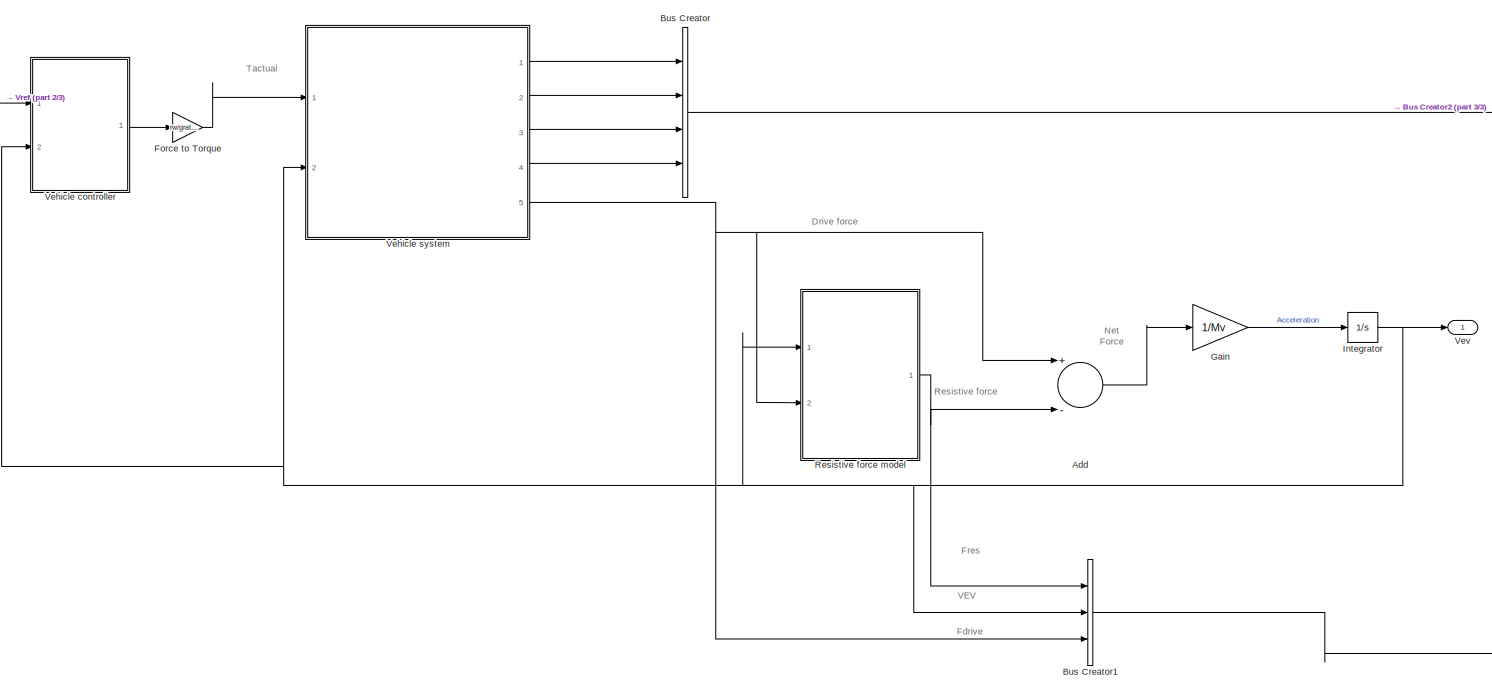
[diagram: root canvas - part 1/3, center side, full height]
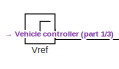
[diagram: root canvas - part 2/3, top left region]
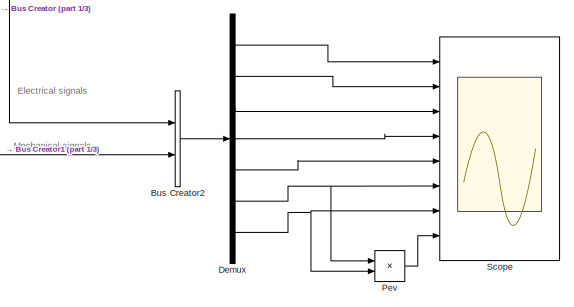
[diagram: root canvas - part 3/3, bottom right region]
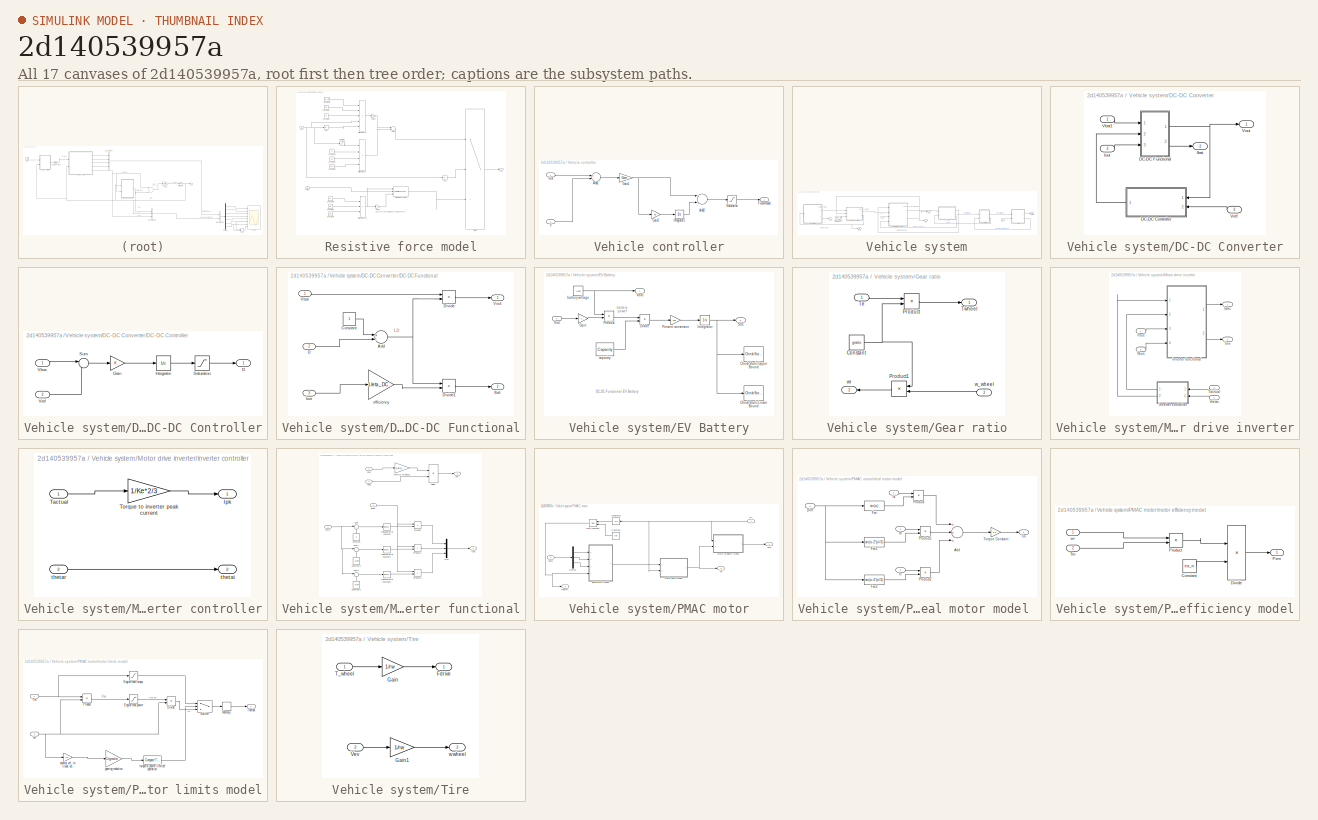
[diagram: thumbnail index - all 17 canvases of the model, root first then tree order]
MODEL slx_2d140539957a
KIND model
CONFIG AbsTol = auto
CONFIG FixedStep = auto
CONFIG MaxStep = auto
CONFIG MinStep = auto
CONFIG RelTol = 1e-3
CONFIG SampleTimeConstraint = Unconstrained
CONFIG Solver = VariableStepAuto
CONFIG SolverMode = Auto
CONFIG SolverName = VariableStepAuto
CONFIG StartTime = 0.0
CONFIG StopTime = tstop
BLOCK [Outport]  Vev
  IconDisplay = Port number
BLOCK [Sum] Add
  InputSameDT = off
  Inputs = +-
  OutDataTypeStr = Inherit: Inherit via internal rule
  Ports = [2, 1]
  SaturateOnIntegerOverflow = off
BLOCK [BusCreator] Bus Creator
  DisplayOption = bar
  InheritFromInputs = on
  Inputs = 4
  Ports = [4, 1]
BLOCK [BusCreator] Bus Creator1
  DisplayOption = bar
  InheritFromInputs = on
  Inputs = 3
  Ports = [3, 1]
BLOCK [BusCreator] Bus Creator2
  DisplayOption = bar
  InheritFromInputs = on
  Inputs = 2
  Ports = [2, 1]
BLOCK [Demux] Demux
  DisplayOption = bar
  Outputs = 7
  Ports = [1, 7]
BLOCK [Gain] Force to Torque
  Gain = rw/gratio
  OutDataTypeStr = Inherit: Inherit via internal rule
  ParamDataTypeStr = Inherit: Inherit via internal rule
  SaturateOnIntegerOverflow = off
BLOCK [Gain] Gain
  Gain = 1/Mv
  OutDataTypeStr = Inherit: Inherit via internal rule
  ParamDataTypeStr = Inherit: Inherit via internal rule
  SaturateOnIntegerOverflow = off
BLOCK [Integrator] Integrator
  Ports = [1, 1]
BLOCK [Product] Pev
  InputSameDT = off
  OutDataTypeStr = Inherit: Inherit via internal rule
  Ports = [2, 1]
  RndMeth = Floor
  SaturateOnIntegerOverflow = off
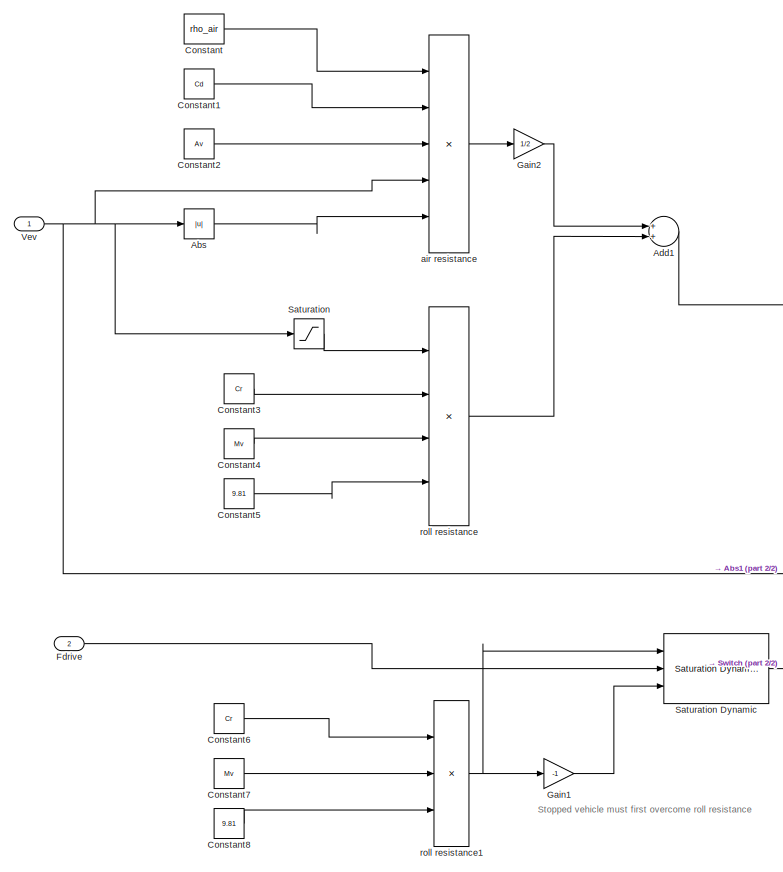
[diagram: Resistive force model - part 1/2, left side, full height]
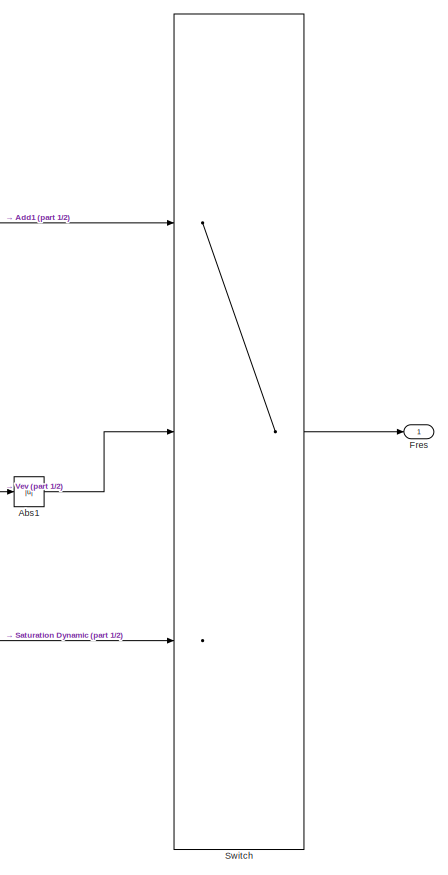
[diagram: Resistive force model - part 2/2, right side, full height]
BLOCK [SubSystem] Resistive force model
  Ports = [2, 1]
  RequestExecContextInheritance = off
  Variant = off
BLOCK [Abs] Resistive force model/Abs
  SaturateOnIntegerOverflow = off
  ZeroCross = off
BLOCK [Abs] Resistive force model/Abs1
  SaturateOnIntegerOverflow = off
BLOCK [Sum] Resistive force model/Add1
  InputSameDT = off
  OutDataTypeStr = Inherit: Inherit via internal rule
  Ports = [2, 1]
  SaturateOnIntegerOverflow = off
BLOCK [Constant] Resistive force model/Constant
  Value = rho_air
BLOCK [Constant] Resistive force model/Constant1
  Value = Cd
BLOCK [Constant] Resistive force model/Constant2
  Value = Av
BLOCK [Constant] Resistive force model/Constant3
  Value = Cr
BLOCK [Constant] Resistive force model/Constant4
  Value = Mv
BLOCK [Constant] Resistive force model/Constant5
  Value = 9.81
BLOCK [Constant] Resistive force model/Constant6
  Value = Cr
BLOCK [Constant] Resistive force model/Constant7
  Value = Mv
BLOCK [Constant] Resistive force model/Constant8
  Value = 9.81
BLOCK [Inport] Resistive force model/Fdrive 
  IconDisplay = Port number
  Port = 2
BLOCK [Outport] Resistive force model/Fres
  IconDisplay = Port number
BLOCK [Gain] Resistive force model/Gain1
  Gain = -1
  OutDataTypeStr = Inherit: Inherit via internal rule
  ParamDataTypeStr = Inherit: Inherit via internal rule
  SaturateOnIntegerOverflow = off
BLOCK [Gain] Resistive force model/Gain2
  Gain = 1/2
  OutDataTypeStr = Inherit: Inherit via internal rule
  ParamDataTypeStr = Inherit: Inherit via internal rule
  SaturateOnIntegerOverflow = off
BLOCK [Saturate] Resistive force model/Saturation
  InputPortMap = u0
  LowerLimit = -1
  Ports = [1, 1]
  UpperLimit = 1
BLOCK [Reference] Resistive force model/Saturation Dynamic  REF=simulink/Discontinuities/Saturation
Dynamic
  Ports = [3, 1]
  SourceBlock = simulink/Discontinuities/Saturation\nDynamic
  SourceType = Saturation Dynamic
BLOCK [Switch] Resistive force model/Switch
  InputSameDT = off
  SaturateOnIntegerOverflow = off
  ZeroCross = off
BLOCK [Inport] Resistive force model/Vev 
  IconDisplay = Port number
BLOCK [Product] Resistive force model/air resistance 
  InputSameDT = off
  Inputs = 5
  OutDataTypeStr = Inherit: Inherit via internal rule
  Ports = [5, 1]
  RndMeth = Floor
  SaturateOnIntegerOverflow = off
BLOCK [Product] Resistive force model/roll resistance
  InputSameDT = off
  Inputs = 4
  OutDataTypeStr = Inherit: Inherit via internal rule
  Ports = [4, 1]
  RndMeth = Floor
  SaturateOnIntegerOverflow = off
BLOCK [Product] Resistive force model/roll resistance1
  InputSameDT = off
  Inputs = 3
  OutDataTypeStr = Inherit: Inherit via internal rule
  Ports = [3, 1]
  RndMeth = Floor
  SaturateOnIntegerOverflow = off
BLOCK [Scope] Scope
  NumInputPorts = 8
  Ports = [8]
  ScopeSpecificationString = Simulink.scopes.TimeScopeBlockCfg('CurrentConfiguration', extmgr.ConfigurationSet(extmgr.Configuration('Core','General UI',true),extmgr.Configuration('Core','Source UI',true),extmgr.Configuration('Sources','WiredSimulink',true),extmgr.Configuration('Visuals','Time Domain',true,'SerializedDisplays',{struct('MinYLimReal','-681.67881','MaxYLimReal','4970.3034','YLabelReal','','MinYLimMag',' 0.00000',...<+6155ch>
BLOCK [SubSystem] Vehicle controller
  Ports = [2, 1]
  RequestExecContextInheritance = off
  Variant = off
BLOCK [Sum] Vehicle controller/Add1
  InputSameDT = off
  Inputs = +-
  OutDataTypeStr = Inherit: Inherit via internal rule
  Ports = [2, 1]
  SaturateOnIntegerOverflow = off
BLOCK [Sum] Vehicle controller/Add2
  InputSameDT = off
  OutDataTypeStr = Inherit: Inherit via internal rule
  Ports = [2, 1]
  SaturateOnIntegerOverflow = off
BLOCK [Outport] Vehicle controller/Fvcommand
  IconDisplay = Port number
BLOCK [Gain] Vehicle controller/Gain1
  Gain = Gcm
  OutDataTypeStr = Inherit: Inherit via internal rule
  ParamDataTypeStr = Inherit: Inherit via internal rule
  SaturateOnIntegerOverflow = off
BLOCK [Gain] Vehicle controller/Gain2
  Gain = wz
  OutDataTypeStr = Inherit: Inherit via internal rule
  ParamDataTypeStr = Inherit: Inherit via internal rule
  SaturateOnIntegerOverflow = off
BLOCK [Integrator] Vehicle controller/Integrator1
  Ports = [1, 1]
BLOCK [Saturate] Vehicle controller/Saturation
  InputPortMap = u0
  LowerLimit = -Fv_max
  Ports = [1, 1]
  UpperLimit = Fv_max
BLOCK [Inport] Vehicle controller/V
  IconDisplay = Port number
  Port = 2
BLOCK [Inport] Vehicle controller/Vref
  IconDisplay = Port number
BLOCK [SubSystem] Vehicle system
  Ports = [2, 5]
  RequestExecContextInheritance = off
  Variant = off
BLOCK [Inport] Vehicle system/ 
  IconDisplay = Port number
BLOCK [Constant] Vehicle system/Bus voltage reference
  Value = Vbus_ref
BLOCK [SubSystem] Vehicle system/DC-DC Converter
  Ports = [3, 2]
  RequestExecContextInheritance = off
  Variant = off
BLOCK [SubSystem] Vehicle system/DC-DC Converter/DC-DC Controller
  Ports = [2, 1]
  RequestExecContextInheritance = off
  Variant = off
BLOCK [Outport] Vehicle system/DC-DC Converter/DC-DC Controller/D 
  IconDisplay = Port number
BLOCK [Gain] Vehicle system/DC-DC Converter/DC-DC Controller/Gain
  OutDataTypeStr = Inherit: Inherit via internal rule
  ParamDataTypeStr = Inherit: Inherit via internal rule
  SaturateOnIntegerOverflow = off
BLOCK [Integrator] Vehicle system/DC-DC Converter/DC-DC Controller/Integrator
  Ports = [1, 1]
BLOCK [Saturate] Vehicle system/DC-DC Converter/DC-DC Controller/Saturation
  InputPortMap = u0
  LowerLimit = 0
  Ports = [1, 1]
  UpperLimit = 1
BLOCK [Sum] Vehicle system/DC-DC Converter/DC-DC Controller/Sum
  IconShape = round
  InputSameDT = off
  Inputs = |-+
  OutDataTypeStr = Inherit: Inherit via internal rule
  Ports = [2, 1]
  SaturateOnIntegerOverflow = off
BLOCK [Inport] Vehicle system/DC-DC Converter/DC-DC Controller/Vbus
  IconDisplay = Port number
BLOCK [Inport] Vehicle system/DC-DC Converter/DC-DC Controller/Vref
  IconDisplay = Port number
  Port = 2
BLOCK [SubSystem] Vehicle system/DC-DC Converter/DC-DC Functional
  Ports = [3, 2]
  RequestExecContextInheritance = off
  Variant = off
BLOCK [Sum] Vehicle system/DC-DC Converter/DC-DC Functional/Add
  InputSameDT = off
  Inputs = +-
  OutDataTypeStr = Inherit: Inherit via internal rule
  Ports = [2, 1]
  SaturateOnIntegerOverflow = off
BLOCK [Constant] Vehicle system/DC-DC Converter/DC-DC Functional/Constant
BLOCK [Inport] Vehicle system/DC-DC Converter/DC-DC Functional/D
  IconDisplay = Port number
  Port = 2
BLOCK [Product] Vehicle system/DC-DC Converter/DC-DC Functional/Divide
  InputSameDT = off
  Inputs = */
  OutDataTypeStr = Inherit: Inherit via internal rule
  Ports = [2, 1]
  RndMeth = Floor
  SaturateOnIntegerOverflow = off
BLOCK [Product] Vehicle system/DC-DC Converter/DC-DC Functional/Divide1
  InputSameDT = off
  Inputs = /*
  OutDataTypeStr = Inherit: Inherit via internal rule
  Ports = [2, 1]
  RndMeth = Floor
  SaturateOnIntegerOverflow = off
BLOCK [Outport] Vehicle system/DC-DC Converter/DC-DC Functional/Ibat
  IconDisplay = Port number
  Port = 2
BLOCK [Inport] Vehicle system/DC-DC Converter/DC-DC Functional/Iout
  IconDisplay = Port number
  Port = 3
BLOCK [Inport] Vehicle system/DC-DC Converter/DC-DC Functional/Vbat
  IconDisplay = Port number
BLOCK [Outport] Vehicle system/DC-DC Converter/DC-DC Functional/Vout
  IconDisplay = Port number
BLOCK [Gain] Vehicle system/DC-DC Converter/DC-DC Functional/efficiency
  Gain = 1/eta_DC
  OutDataTypeStr = Inherit: Inherit via internal rule
  ParamDataTypeStr = Inherit: Inherit via internal rule
  SaturateOnIntegerOverflow = off
BLOCK [Outport] Vehicle system/DC-DC Converter/Ibat
  IconDisplay = Port number
  Port = 2
BLOCK [Inport] Vehicle system/DC-DC Converter/Iout
  IconDisplay = Port number
  Port = 2
BLOCK [Inport] Vehicle system/DC-DC Converter/Vbat1
  IconDisplay = Port number
BLOCK [Outport] Vehicle system/DC-DC Converter/Vout
  IconDisplay = Port number
BLOCK [Inport] Vehicle system/DC-DC Converter/Vref
  IconDisplay = Port number
  Port = 3
BLOCK [SubSystem] Vehicle system/EV Battery
  Ports = [1, 2]
  RequestExecContextInheritance = off
  Variant = off
BLOCK [Reference] Vehicle system/EV Battery/Check Static Lower Bound  REF=simulink/Model
Verification/Check Static 
Lower Bound
  Description = 0-eps <= u
  Ports = [1]
  SourceBlock = simulink/Model\nVerification/Check Static \nLower Bound
  SourceType = Checks_SMin
BLOCK [Reference] Vehicle system/EV Battery/Check Static Upper Bound  REF=simulink/Model
Verification/Check Static 
Upper Bound
  Description = u <= 100+eps
  Ports = [1]
  SourceBlock = simulink/Model\nVerification/Check Static \nUpper Bound
  SourceType = Checks_SMax
BLOCK [Product] Vehicle system/EV Battery/Divide
  InputSameDT = off
  Inputs = */
  OutDataTypeStr = Inherit: Inherit via internal rule
  Ports = [2, 1]
  RndMeth = Floor
  SaturateOnIntegerOverflow = off
BLOCK [Gain] Vehicle system/EV Battery/Gain
  Gain = -1
  OutDataTypeStr = Inherit: Inherit via internal rule
  ParamDataTypeStr = Inherit: Inherit via internal rule
  SaturateOnIntegerOverflow = off
BLOCK [Inport] Vehicle system/EV Battery/Ibat 
  IconDisplay = Port number
BLOCK [Integrator] Vehicle system/EV Battery/Integrator
  InitialCondition = SOC_0
  Ports = [1, 1]
BLOCK [Gain] Vehicle system/EV Battery/Percent conversion
  Gain = 100
  OutDataTypeStr = Inherit: Inherit via internal rule
  ParamDataTypeStr = Inherit: Inherit via internal rule
  SaturateOnIntegerOverflow = off
BLOCK [Product] Vehicle system/EV Battery/Product
  InputSameDT = off
  OutDataTypeStr = Inherit: Inherit via internal rule
  Ports = [2, 1]
  RndMeth = Floor
  SaturateOnIntegerOverflow = off
BLOCK [Outport] Vehicle system/EV Battery/SOC
  IconDisplay = Port number
  Port = 2
BLOCK [Outport] Vehicle system/EV Battery/Vbat
  IconDisplay = Port number
BLOCK [Constant] Vehicle system/EV Battery/battery voltage
  Value = Vbat
BLOCK [Constant] Vehicle system/EV Battery/capacity
  Value = Capacity
BLOCK [Outport] Vehicle system/Fdrive
  IconDisplay = Port number
  Port = 5
BLOCK [SubSystem] Vehicle system/Gear ratio
  Ports = [2, 2]
  RequestExecContextInheritance = off
  Variant = off
BLOCK [Constant] Vehicle system/Gear ratio/Constant
  Value = gratio
BLOCK [Product] Vehicle system/Gear ratio/Product
  InputSameDT = off
  OutDataTypeStr = Inherit: Inherit via internal rule
  Ports = [2, 1]
  RndMeth = Floor
  SaturateOnIntegerOverflow = off
BLOCK [Product] Vehicle system/Gear ratio/Product1
  InputSameDT = off
  OutDataTypeStr = Inherit: Inherit via internal rule
  Ports = [2, 1]
  RndMeth = Floor
  SaturateOnIntegerOverflow = off
BLOCK [Inport] Vehicle system/Gear ratio/Te
  IconDisplay = Port number
BLOCK [Outport] Vehicle system/Gear ratio/Twheel
  IconDisplay = Port number
BLOCK [Inport] Vehicle system/Gear ratio/w_wheel
  IconDisplay = Port number
  Port = 2
BLOCK [Outport] Vehicle system/Gear ratio/wr
  IconDisplay = Port number
  Port = 2
BLOCK [Outport] Vehicle system/Iabc
  IconDisplay = Port number
  Port = 3
BLOCK [Outport] Vehicle system/Ibat
  IconDisplay = Port number
  Port = 2
BLOCK [Outport] Vehicle system/Iinv
  IconDisplay = Port number
  Port = 4
BLOCK [SubSystem] Vehicle system/Motor drive inverter
  Ports = [4, 2]
  RequestExecContextInheritance = off
  Variant = off
BLOCK [Outport] Vehicle system/Motor drive inverter/Iabc
  IconDisplay = Port number
BLOCK [Outport] Vehicle system/Motor drive inverter/Iinv
  IconDisplay = Port number
  Port = 2
BLOCK [Inport] Vehicle system/Motor drive inverter/Pout
  IconDisplay = Port number
BLOCK [Inport] Vehicle system/Motor drive inverter/Tactual 
  IconDisplay = Port number
  Port = 3
BLOCK [Inport] Vehicle system/Motor drive inverter/Vbus
  IconDisplay = Port number
  Port = 2
BLOCK [SubSystem] Vehicle system/Motor drive inverter/inverter controller
  Ports = [2, 2]
  RequestExecContextInheritance = off
  Variant = off
BLOCK [Outport] Vehicle system/Motor drive inverter/inverter controller/Ipk
  IconDisplay = Port number
BLOCK [Inport] Vehicle system/Motor drive inverter/inverter controller/Tactual 
  IconDisplay = Port number
BLOCK [Gain] Vehicle system/Motor drive inverter/inverter controller/Torque to inverter peak current
  Gain = 1/Ke*2/3
  OutDataTypeStr = Inherit: Inherit via internal rule
  ParamDataTypeStr = Inherit: Inherit via internal rule
  SaturateOnIntegerOverflow = off
BLOCK [Outport] Vehicle system/Motor drive inverter/inverter controller/thetai
  IconDisplay = Port number
  Port = 2
BLOCK [Inport] Vehicle system/Motor drive inverter/inverter controller/thetar
  IconDisplay = Port number
  Port = 2
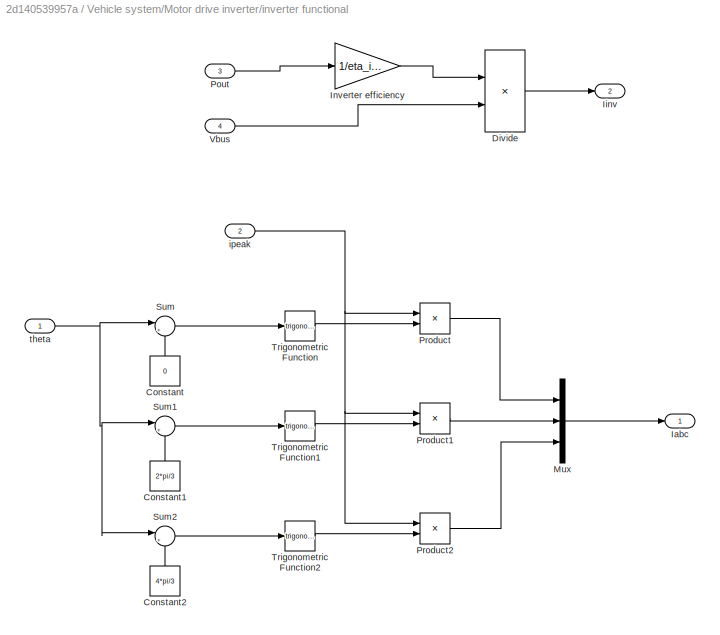
BLOCK [SubSystem] Vehicle system/Motor drive inverter/inverter functional
  Ports = [4, 2]
  RequestExecContextInheritance = off
  Variant = off
BLOCK [Constant] Vehicle system/Motor drive inverter/inverter functional/Constant
  Value = 0
BLOCK [Constant] Vehicle system/Motor drive inverter/inverter functional/Constant1
  Value = 2*pi/3
BLOCK [Constant] Vehicle system/Motor drive inverter/inverter functional/Constant2
  Value = 4*pi/3
BLOCK [Product] Vehicle system/Motor drive inverter/inverter functional/Divide
  InputSameDT = off
  Inputs = */
  OutDataTypeStr = Inherit: Inherit via internal rule
  Ports = [2, 1]
  RndMeth = Floor
  SaturateOnIntegerOverflow = off
BLOCK [Outport] Vehicle system/Motor drive inverter/inverter functional/Iabc
  IconDisplay = Port number
BLOCK [Outport] Vehicle system/Motor drive inverter/inverter functional/Iinv
  IconDisplay = Port number
  Port = 2
BLOCK [Gain] Vehicle system/Motor drive inverter/inverter functional/Inverter efficiency
  Gain = 1/eta_inv
  OutDataTypeStr = Inherit: Inherit via internal rule
  ParamDataTypeStr = Inherit: Inherit via internal rule
  SaturateOnIntegerOverflow = off
BLOCK [Mux] Vehicle system/Motor drive inverter/inverter functional/Mux
  DisplayOption = bar
  Inputs = 3
  Ports = [3, 1]
BLOCK [Inport] Vehicle system/Motor drive inverter/inverter functional/Pout
  IconDisplay = Port number
  Port = 3
BLOCK [Product] Vehicle system/Motor drive inverter/inverter functional/Product
  InputSameDT = off
  OutDataTypeStr = Inherit: Inherit via internal rule
  Ports = [2, 1]
  RndMeth = Floor
  SaturateOnIntegerOverflow = off
BLOCK [Product] Vehicle system/Motor drive inverter/inverter functional/Product1
  InputSameDT = off
  OutDataTypeStr = Inherit: Inherit via internal rule
  Ports = [2, 1]
  RndMeth = Floor
  SaturateOnIntegerOverflow = off
BLOCK [Product] Vehicle system/Motor drive inverter/inverter functional/Product2
  InputSameDT = off
  OutDataTypeStr = Inherit: Inherit via internal rule
  Ports = [2, 1]
  RndMeth = Floor
  SaturateOnIntegerOverflow = off
BLOCK [Sum] Vehicle system/Motor drive inverter/inverter functional/Sum
  IconShape = round
  InputSameDT = off
  Inputs = |+-
  OutDataTypeStr = Inherit: Inherit via internal rule
  Ports = [2, 1]
  SaturateOnIntegerOverflow = off
BLOCK [Sum] Vehicle system/Motor drive inverter/inverter functional/Sum1
  IconShape = round
  InputSameDT = off
  Inputs = |+-
  OutDataTypeStr = Inherit: Inherit via internal rule
  Ports = [2, 1]
  SaturateOnIntegerOverflow = off
BLOCK [Sum] Vehicle system/Motor drive inverter/inverter functional/Sum2
  IconShape = round
  InputSameDT = off
  Inputs = |+-
  OutDataTypeStr = Inherit: Inherit via internal rule
  Ports = [2, 1]
  SaturateOnIntegerOverflow = off
BLOCK [Trigonometry] Vehicle system/Motor drive inverter/inverter functional/Trigonometric Function
  Ports = [1, 1]
BLOCK [Trigonometry] Vehicle system/Motor drive inverter/inverter functional/Trigonometric Function1
  Ports = [1, 1]
BLOCK [Trigonometry] Vehicle system/Motor drive inverter/inverter functional/Trigonometric Function2
  Ports = [1, 1]
BLOCK [Inport] Vehicle system/Motor drive inverter/inverter functional/Vbus
  IconDisplay = Port number
  Port = 4
BLOCK [Inport] Vehicle system/Motor drive inverter/inverter functional/ipeak
  IconDisplay = Port number
  Port = 2
BLOCK [Inport] Vehicle system/Motor drive inverter/inverter functional/theta 
  IconDisplay = Port number
BLOCK [Inport] Vehicle system/Motor drive inverter/thetar
  IconDisplay = Port number
  Port = 4
BLOCK [SubSystem] Vehicle system/PMAC motor
  Ports = [2, 3]
  RequestExecContextInheritance = off
  Variant = off
BLOCK [Constant] Vehicle system/PMAC motor/Constant
  Value = 2*pi
BLOCK [Demux] Vehicle system/PMAC motor/Demux
  DisplayOption = bar
  Outputs = 3
  Ports = [1, 3]
BLOCK [Inport] Vehicle system/PMAC motor/Iabc1
  IconDisplay = Port number
BLOCK [Integrator] Vehicle system/PMAC motor/Integrator
  Ports = [1, 1]
BLOCK [Math] Vehicle system/PMAC motor/Math Function
  Operator = mod
  Ports = [2, 1]
BLOCK [Outport] Vehicle system/PMAC motor/Pem
  IconDisplay = Port number
BLOCK [Outport] Vehicle system/PMAC motor/Tm
  IconDisplay = Port number
  Port = 2
BLOCK [SubSystem] Vehicle system/PMAC motor/ideal motor model 
  Ports = [4, 1]
  RequestExecContextInheritance = off
  Variant = off
BLOCK [Sum] Vehicle system/PMAC motor/ideal motor model /Add
  InputSameDT = off
  Inputs = +++
  OutDataTypeStr = Inherit: Inherit via internal rule
  Ports = [3, 1]
  SaturateOnIntegerOverflow = off
BLOCK [Fcn] Vehicle system/PMAC motor/ideal motor model /Fcn
  Expr = sin(u)
BLOCK [Fcn] Vehicle system/PMAC motor/ideal motor model /Fcn1
  Expr = sin(u-2*pi/3)
BLOCK [Fcn] Vehicle system/PMAC motor/ideal motor model /Fcn2
  Expr = sin(u-4*pi/3)
BLOCK [Inport] Vehicle system/PMAC motor/ideal motor model /Ia
  IconDisplay = Port number
BLOCK [Inport] Vehicle system/PMAC motor/ideal motor model /Ib
  IconDisplay = Port number
  Port = 2
BLOCK [Inport] Vehicle system/PMAC motor/ideal motor model /Ic
  IconDisplay = Port number
  Port = 3
BLOCK [Product] Vehicle system/PMAC motor/ideal motor model /Product
  InputSameDT = off
  OutDataTypeStr = Inherit: Inherit via internal rule
  Ports = [2, 1]
  RndMeth = Floor
  SaturateOnIntegerOverflow = off
BLOCK [Product] Vehicle system/PMAC motor/ideal motor model /Product1
  InputSameDT = off
  OutDataTypeStr = Inherit: Inherit via internal rule
  Ports = [2, 1]
  RndMeth = Floor
  SaturateOnIntegerOverflow = off
BLOCK [Product] Vehicle system/PMAC motor/ideal motor model /Product2
  InputSameDT = off
  OutDataTypeStr = Inherit: Inherit via internal rule
  Ports = [2, 1]
  RndMeth = Floor
  SaturateOnIntegerOverflow = off
BLOCK [Outport] Vehicle system/PMAC motor/ideal motor model /Tm
  IconDisplay = Port number
BLOCK [Gain] Vehicle system/PMAC motor/ideal motor model /Torque Constant
  Gain = Ke
  OutDataTypeStr = Inherit: Inherit via internal rule
  ParamDataTypeStr = Inherit: Inherit via internal rule
  SaturateOnIntegerOverflow = off
BLOCK [Inport] Vehicle system/PMAC motor/ideal motor model /pihr
  IconDisplay = Port number
  Port = 4
BLOCK [SubSystem] Vehicle system/PMAC motor/motor efficiency model
  Ports = [2, 1]
  RequestExecContextInheritance = off
  Variant = off
BLOCK [Constant] Vehicle system/PMAC motor/motor efficiency model/Constant
  Value = eta_m
BLOCK [Product] Vehicle system/PMAC motor/motor efficiency model/Divide
  InputSameDT = off
  Inputs = */
  OutDataTypeStr = Inherit: Inherit via internal rule
  Ports = [2, 1]
  RndMeth = Floor
  SaturateOnIntegerOverflow = off
BLOCK [Outport] Vehicle system/PMAC motor/motor efficiency model/Pem
  IconDisplay = Port number
BLOCK [Product] Vehicle system/PMAC motor/motor efficiency model/Product
  InputSameDT = off
  OutDataTypeStr = Inherit: Inherit via internal rule
  Ports = [2, 1]
  RndMeth = Floor
  SaturateOnIntegerOverflow = off
BLOCK [Inport] Vehicle system/PMAC motor/motor efficiency model/Tm
  IconDisplay = Port number
  Port = 2
BLOCK [Inport] Vehicle system/PMAC motor/motor efficiency model/wr
  IconDisplay = Port number
BLOCK [SubSystem] Vehicle system/PMAC motor/motor limits model
  Ports = [2, 1]
  RequestExecContextInheritance = off
  Variant = off
BLOCK [Product] Vehicle system/PMAC motor/motor limits model/Divide
  InputSameDT = off
  Inputs = */
  OutDataTypeStr = Inherit: Inherit via internal rule
  Ports = [2, 1]
  RndMeth = Floor
  SaturateOnIntegerOverflow = off
BLOCK [Saturate] Vehicle system/PMAC motor/motor limits model/Engine max power
  InputPortMap = u0
  LowerLimit = -Pe_max
  Ports = [1, 1]
  UpperLimit = Pe_max
  ZeroCross = off
BLOCK [Saturate] Vehicle system/PMAC motor/motor limits model/Engine max torque
  InputPortMap = u0
  LowerLimit = -Te_max
  Ports = [1, 1]
  UpperLimit = Te_max
  ZeroCross = off
BLOCK [Memory] Vehicle system/PMAC motor/motor limits model/Memory
BLOCK [Product] Vehicle system/PMAC motor/motor limits model/Product
  InputSameDT = off
  OutDataTypeStr = Inherit: Inherit via internal rule
  Ports = [2, 1]
  RndMeth = Floor
  SaturateOnIntegerOverflow = off
BLOCK [Switch] Vehicle system/PMAC motor/motor limits model/Switch
  Criteria = u2 ~= 0
  InputSameDT = off
  SaturateOnIntegerOverflow = off
BLOCK [Outport] Vehicle system/PMAC motor/motor limits model/Tactual
  IconDisplay = Port number
BLOCK [Inport] Vehicle system/PMAC motor/motor limits model/Tm
  IconDisplay = Port number
BLOCK [Gain] Vehicle system/PMAC motor/motor limits model/angular vel. to linear vel.
  Gain = rw
  OutDataTypeStr = Inherit: Inherit via internal rule
  ParamDataTypeStr = Inherit: Inherit via internal rule
  SaturateOnIntegerOverflow = off
BLOCK [Gain] Vehicle system/PMAC motor/motor limits model/gearing reduction
  Gain = 1/gratio
  OutDataTypeStr = Inherit: Inherit via internal rule
  ParamDataTypeStr = Inherit: Inherit via internal rule
  SaturateOnIntegerOverflow = off
BLOCK [Reference] Vehicle system/PMAC motor/motor limits model/torque or power limited operation  REF=simulink/Logic and Bit
Operations/Compare
To Constant
  Ports = [1, 1]
  SourceBlock = simulink/Logic and Bit\nOperations/Compare\nTo Constant
  SourceType = Compare To Constant
BLOCK [Inport] Vehicle system/PMAC motor/motor limits model/wr
  IconDisplay = Port number
  Port = 2
BLOCK [Outport] Vehicle system/PMAC motor/thetar1
  IconDisplay = Port number
  Port = 3
BLOCK [Inport] Vehicle system/PMAC motor/wr
  IconDisplay = Port number
  Port = 2
BLOCK [Outport] Vehicle system/SOC
  IconDisplay = Port number
BLOCK [SubSystem] Vehicle system/Tire
  Ports = [2, 2]
  RequestExecContextInheritance = off
  Variant = off
BLOCK [Outport] Vehicle system/Tire/Fdrive
  IconDisplay = Port number
BLOCK [Gain] Vehicle system/Tire/Gain
  Gain = 1/rw
  OutDataTypeStr = Inherit: Inherit via internal rule
  ParamDataTypeStr = Inherit: Inherit via internal rule
  SaturateOnIntegerOverflow = off
BLOCK [Gain] Vehicle system/Tire/Gain1
  Gain = 1/rw
  OutDataTypeStr = Inherit: Inherit via internal rule
  ParamDataTypeStr = Inherit: Inherit via internal rule
  SaturateOnIntegerOverflow = off
BLOCK [Inport] Vehicle system/Tire/T_wheel
  IconDisplay = Port number
BLOCK [Inport] Vehicle system/Tire/Vev
  IconDisplay = Port number
  Port = 2
BLOCK [Outport] Vehicle system/Tire/w wheel
  IconDisplay = Port number
  Port = 2
BLOCK [Inport] Vehicle system/Vev
  IconDisplay = Port number
  Port = 2
BLOCK [Step] Vref
  After = vref_2
  Before = vref_1
  SampleTime = 0
  Time = 20
ANNOTATION (root): Resistive force
ANNOTATION (root): Drive force
ANNOTATION (root): Electrical signals
ANNOTATION (root): Fdrive
ANNOTATION (root): Fres
ANNOTATION (root): Mechanical signals
ANNOTATION (root): Net Force
ANNOTATION (root): Tactual
ANNOTATION (root): VEV
ANNOTATION Resistive force model: Stopped vehicle must first overcome roll resistance
ANNOTATION Vehicle system: DC bus voltage
ANNOTATION Vehicle system: Tactual
ANNOTATION Vehicle system: battery current
ANNOTATION Vehicle system: battery voltage
ANNOTATION Vehicle system: motor input power
ANNOTATION Vehicle system: three-phase inverter current
ANNOTATION Vehicle system/DC-DC Converter/DC-DC Functional: 1-D
ANNOTATION Vehicle system/EV Battery: DC-DC Functional EV Battery
ANNOTATION Vehicle system/EV Battery: battery power
ANNOTATION Vehicle system/PMAC motor/motor limits model: Pm
LINE Add:1 -> Gain:1
LINE Bus Creator1:1 -> Bus Creator2:2
LINE Bus Creator2:1 -> Demux:1
LINE Bus Creator:1 -> Bus Creator2:1
LINE Demux:1 -> Scope:1
LINE Demux:2 -> Scope:2
LINE Demux:3 -> Scope:3
LINE Demux:4 -> Scope:4
LINE Demux:5 -> Scope:5
NET Demux:6 -> Pev:1, Scope:6
NET Demux:7 -> Pev:2, Scope:7
LINE Force to Torque:1 -> Vehicle system:1
LINE Gain:1 -> Integrator:1
NET Integrator:1 ->  Vev:1, Bus Creator1:2, Resistive force model:1, Vehicle controller:2, Vehicle system:2
LINE Pev:1 -> Scope:8
LINE Resistive force model/Abs1:1 -> Resistive force model/Switch:2
LINE Resistive force model/Abs:1 -> Resistive force model/air resistance :5
LINE Resistive force model/Add1:1 -> Resistive force model/Switch:1
LINE Resistive force model/Constant1:1 -> Resistive force model/air resistance :2
LINE Resistive force model/Constant2:1 -> Resistive force model/air resistance :3
LINE Resistive force model/Constant3:1 -> Resistive force model/roll resistance:2
LINE Resistive force model/Constant4:1 -> Resistive force model/roll resistance:3
LINE Resistive force model/Constant5:1 -> Resistive force model/roll resistance:4
LINE Resistive force model/Constant6:1 -> Resistive force model/roll resistance1:1
LINE Resistive force model/Constant7:1 -> Resistive force model/roll resistance1:2
LINE Resistive force model/Constant8:1 -> Resistive force model/roll resistance1:3
LINE Resistive force model/Constant:1 -> Resistive force model/air resistance :1
LINE Resistive force model/Fdrive :1 -> Resistive force model/Saturation Dynamic:2
LINE Resistive force model/Gain1:1 -> Resistive force model/Saturation Dynamic:3
LINE Resistive force model/Gain2:1 -> Resistive force model/Add1:1
LINE Resistive force model/Saturation Dynamic:1 -> Resistive force model/Switch:3
LINE Resistive force model/Saturation:1 -> Resistive force model/roll resistance:1
LINE Resistive force model/Switch:1 -> Resistive force model/Fres:1
NET Resistive force model/Vev :1 -> Resistive force model/Abs1:1, Resistive force model/Abs:1, Resistive force model/Saturation:1, Resistive force model/air resistance :4
LINE Resistive force model/air resistance :1 -> Resistive force model/Gain2:1
NET Resistive force model/roll resistance1:1 -> Resistive force model/Gain1:1, Resistive force model/Saturation Dynamic:1
LINE Resistive force model/roll resistance:1 -> Resistive force model/Add1:2
NET Resistive force model:1 -> Add:2, Bus Creator1:1
LINE Vehicle controller/Add1:1 -> Vehicle controller/Gain1:1
LINE Vehicle controller/Add2:1 -> Vehicle controller/Saturation:1
NET Vehicle controller/Gain1:1 -> Vehicle controller/Add2:1, Vehicle controller/Gain2:1
LINE Vehicle controller/Gain2:1 -> Vehicle controller/Integrator1:1
LINE Vehicle controller/Integrator1:1 -> Vehicle controller/Add2:2
LINE Vehicle controller/Saturation:1 -> Vehicle controller/Fvcommand:1
LINE Vehicle controller/V:1 -> Vehicle controller/Add1:2
LINE Vehicle controller/Vref:1 -> Vehicle controller/Add1:1
LINE Vehicle controller:1 -> Force to Torque:1
LINE Vehicle system/ :1 -> Vehicle system/Motor drive inverter:3
LINE Vehicle system/Bus voltage reference:1 -> Vehicle system/DC-DC Converter:3
LINE Vehicle system/DC-DC Converter/DC-DC Controller/Gain:1 -> Vehicle system/DC-DC Converter/DC-DC Controller/Integrator:1
LINE Vehicle system/DC-DC Converter/DC-DC Controller/Integrator:1 -> Vehicle system/DC-DC Converter/DC-DC Controller/Saturation:1
LINE Vehicle system/DC-DC Converter/DC-DC Controller/Saturation:1 -> Vehicle system/DC-DC Converter/DC-DC Controller/D :1
LINE Vehicle system/DC-DC Converter/DC-DC Controller/Sum:1 -> Vehicle system/DC-DC Converter/DC-DC Controller/Gain:1
LINE Vehicle system/DC-DC Converter/DC-DC Controller/Vbus:1 -> Vehicle system/DC-DC Converter/DC-DC Controller/Sum:1
LINE Vehicle system/DC-DC Converter/DC-DC Controller/Vref:1 -> Vehicle system/DC-DC Converter/DC-DC Controller/Sum:2
LINE Vehicle system/DC-DC Converter/DC-DC Controller:1 -> Vehicle system/DC-DC Converter/DC-DC Functional:2
NET Vehicle system/DC-DC Converter/DC-DC Functional/Add:1 -> Vehicle system/DC-DC Converter/DC-DC Functional/Divide1:1, Vehicle system/DC-DC Converter/DC-DC Functional/Divide:2
LINE Vehicle system/DC-DC Converter/DC-DC Functional/Constant:1 -> Vehicle system/DC-DC Converter/DC-DC Functional/Add:1
LINE Vehicle system/DC-DC Converter/DC-DC Functional/D:1 -> Vehicle system/DC-DC Converter/DC-DC Functional/Add:2
LINE Vehicle system/DC-DC Converter/DC-DC Functional/Divide1:1 -> Vehicle system/DC-DC Converter/DC-DC Functional/Ibat:1
LINE Vehicle system/DC-DC Converter/DC-DC Functional/Divide:1 -> Vehicle system/DC-DC Converter/DC-DC Functional/Vout:1
LINE Vehicle system/DC-DC Converter/DC-DC Functional/Iout:1 -> Vehicle system/DC-DC Converter/DC-DC Functional/efficiency:1
LINE Vehicle system/DC-DC Converter/DC-DC Functional/Vbat:1 -> Vehicle system/DC-DC Converter/DC-DC Functional/Divide:1
LINE Vehicle system/DC-DC Converter/DC-DC Functional/efficiency:1 -> Vehicle system/DC-DC Converter/DC-DC Functional/Divide1:2
NET Vehicle system/DC-DC Converter/DC-DC Functional:1 -> Vehicle system/DC-DC Converter/DC-DC Controller:1, Vehicle system/DC-DC Converter/Vout:1
LINE Vehicle system/DC-DC Converter/DC-DC Functional:2 -> Vehicle system/DC-DC Converter/Ibat:1
LINE Vehicle system/DC-DC Converter/Iout:1 -> Vehicle system/DC-DC Converter/DC-DC Functional:3
LINE Vehicle system/DC-DC Converter/Vbat1:1 -> Vehicle system/DC-DC Converter/DC-DC Functional:1
LINE Vehicle system/DC-DC Converter/Vref:1 -> Vehicle system/DC-DC Converter/DC-DC Controller:2
LINE Vehicle system/DC-DC Converter:1 -> Vehicle system/Motor drive inverter:2
NET Vehicle system/DC-DC Converter:2 -> Vehicle system/EV Battery:1, Vehicle system/Ibat:1
LINE Vehicle system/EV Battery/Divide:1 -> Vehicle system/EV Battery/Percent conversion:1
LINE Vehicle system/EV Battery/Gain:1 -> Vehicle system/EV Battery/Product:2
LINE Vehicle system/EV Battery/Ibat :1 -> Vehicle system/EV Battery/Gain:1
NET Vehicle system/EV Battery/Integrator:1 -> Vehicle system/EV Battery/Check Static Lower Bound:1, Vehicle system/EV Battery/Check Static Upper Bound:1, Vehicle system/EV Battery/SOC:1
LINE Vehicle system/EV Battery/Percent conversion:1 -> Vehicle system/EV Battery/Integrator:1
LINE Vehicle system/EV Battery/Product:1 -> Vehicle system/EV Battery/Divide:1
NET Vehicle system/EV Battery/battery voltage:1 -> Vehicle system/EV Battery/Product:1, Vehicle system/EV Battery/Vbat:1
LINE Vehicle system/EV Battery/capacity:1 -> Vehicle system/EV Battery/Divide:2
LINE Vehicle system/EV Battery:1 -> Vehicle system/DC-DC Converter:1
LINE Vehicle system/EV Battery:2 -> Vehicle system/SOC:1
NET Vehicle system/Gear ratio/Constant:1 -> Vehicle system/Gear ratio/Product1:1, Vehicle system/Gear ratio/Product:2
LINE Vehicle system/Gear ratio/Product1:1 -> Vehicle system/Gear ratio/wr:1
LINE Vehicle system/Gear ratio/Product:1 -> Vehicle system/Gear ratio/Twheel:1
LINE Vehicle system/Gear ratio/Te:1 -> Vehicle system/Gear ratio/Product:1
LINE Vehicle system/Gear ratio/w_wheel:1 -> Vehicle system/Gear ratio/Product1:2
LINE Vehicle system/Gear ratio:1 -> Vehicle system/Tire:1
LINE Vehicle system/Gear ratio:2 -> Vehicle system/PMAC motor:2
LINE Vehicle system/Motor drive inverter/Pout:1 -> Vehicle system/Motor drive inverter/inverter functional:3
LINE Vehicle system/Motor drive inverter/Tactual :1 -> Vehicle system/Motor drive inverter/inverter controller:1
LINE Vehicle system/Motor drive inverter/Vbus:1 -> Vehicle system/Motor drive inverter/inverter functional:4
LINE Vehicle system/Motor drive inverter/inverter controller/Tactual :1 -> Vehicle system/Motor drive inverter/inverter controller/Torque to inverter peak current:1
LINE Vehicle system/Motor drive inverter/inverter controller/Torque to inverter peak current:1 -> Vehicle system/Motor drive inverter/inverter controller/Ipk:1
LINE Vehicle system/Motor drive inverter/inverter controller/thetar:1 -> Vehicle system/Motor drive inverter/inverter controller/thetai:1
LINE Vehicle system/Motor drive inverter/inverter controller:1 -> Vehicle system/Motor drive inverter/inverter functional:2
LINE Vehicle system/Motor drive inverter/inverter controller:2 -> Vehicle system/Motor drive inverter/inverter functional:1
LINE Vehicle system/Motor drive inverter/inverter functional/Constant1:1 -> Vehicle system/Motor drive inverter/inverter functional/Sum1:2
LINE Vehicle system/Motor drive inverter/inverter functional/Constant2:1 -> Vehicle system/Motor drive inverter/inverter functional/Sum2:2
LINE Vehicle system/Motor drive inverter/inverter functional/Constant:1 -> Vehicle system/Motor drive inverter/inverter functional/Sum:2
LINE Vehicle system/Motor drive inverter/inverter functional/Divide:1 -> Vehicle system/Motor drive inverter/inverter functional/Iinv:1
LINE Vehicle system/Motor drive inverter/inverter functional/Inverter efficiency:1 -> Vehicle system/Motor drive inverter/inverter functional/Divide:1
LINE Vehicle system/Motor drive inverter/inverter functional/Mux:1 -> Vehicle system/Motor drive inverter/inverter functional/Iabc:1
LINE Vehicle system/Motor drive inverter/inverter functional/Pout:1 -> Vehicle system/Motor drive inverter/inverter functional/Inverter efficiency:1
LINE Vehicle system/Motor drive inverter/inverter functional/Product1:1 -> Vehicle system/Motor drive inverter/inverter functional/Mux:2
LINE Vehicle system/Motor drive inverter/inverter functional/Product2:1 -> Vehicle system/Motor drive inverter/inverter functional/Mux:3
LINE Vehicle system/Motor drive inverter/inverter functional/Product:1 -> Vehicle system/Motor drive inverter/inverter functional/Mux:1
LINE Vehicle system/Motor drive inverter/inverter functional/Sum1:1 -> Vehicle system/Motor drive inverter/inverter functional/Trigonometric Function1:1
LINE Vehicle system/Motor drive inverter/inverter functional/Sum2:1 -> Vehicle system/Motor drive inverter/inverter functional/Trigonometric Function2:1
LINE Vehicle system/Motor drive inverter/inverter functional/Sum:1 -> Vehicle system/Motor drive inverter/inverter functional/Trigonometric Function:1
LINE Vehicle system/Motor drive inverter/inverter functional/Trigonometric Function1:1 -> Vehicle system/Motor drive inverter/inverter functional/Product1:2
LINE Vehicle system/Motor drive inverter/inverter functional/Trigonometric Function2:1 -> Vehicle system/Motor drive inverter/inverter functional/Product2:2
LINE Vehicle system/Motor drive inverter/inverter functional/Trigonometric Function:1 -> Vehicle system/Motor drive inverter/inverter functional/Product:2
LINE Vehicle system/Motor drive inverter/inverter functional/Vbus:1 -> Vehicle system/Motor drive inverter/inverter functional/Divide:2
NET Vehicle system/Motor drive inverter/inverter functional/ipeak:1 -> Vehicle system/Motor drive inverter/inverter functional/Product1:1, Vehicle system/Motor drive inverter/inverter functional/Product2:1, Vehicle system/Motor drive inverter/inverter functional/Product:1
NET Vehicle system/Motor drive inverter/inverter functional/theta :1 -> Vehicle system/Motor drive inverter/inverter functional/Sum1:1, Vehicle system/Motor drive inverter/inverter functional/Sum2:1, Vehicle system/Motor drive inverter/inverter functional/Sum:1
LINE Vehicle system/Motor drive inverter/inverter functional:1 -> Vehicle system/Motor drive inverter/Iabc:1
LINE Vehicle system/Motor drive inverter/inverter functional:2 -> Vehicle system/Motor drive inverter/Iinv:1
LINE Vehicle system/Motor drive inverter/thetar:1 -> Vehicle system/Motor drive inverter/inverter controller:2
NET Vehicle system/Motor drive inverter:1 -> Vehicle system/Iabc:1, Vehicle system/PMAC motor:1
NET Vehicle system/Motor drive inverter:2 -> Vehicle system/DC-DC Converter:2, Vehicle system/Iinv:1
LINE Vehicle system/PMAC motor/Constant:1 -> Vehicle system/PMAC motor/Math Function:2
LINE Vehicle system/PMAC motor/Demux:1 -> Vehicle system/PMAC motor/ideal motor model :1
LINE Vehicle system/PMAC motor/Demux:2 -> Vehicle system/PMAC motor/ideal motor model :2
LINE Vehicle system/PMAC motor/Demux:3 -> Vehicle system/PMAC motor/ideal motor model :3
LINE Vehicle system/PMAC motor/Iabc1:1 -> Vehicle system/PMAC motor/Demux:1
LINE Vehicle system/PMAC motor/Integrator:1 -> Vehicle system/PMAC motor/Math Function:1
NET Vehicle system/PMAC motor/Math Function:1 -> Vehicle system/PMAC motor/ideal motor model :4, Vehicle system/PMAC motor/thetar1:1
LINE Vehicle system/PMAC motor/ideal motor model /Add:1 -> Vehicle system/PMAC motor/ideal motor model /Torque Constant:1
LINE Vehicle system/PMAC motor/ideal motor model /Fcn1:1 -> Vehicle system/PMAC motor/ideal motor model /Product1:2
LINE Vehicle system/PMAC motor/ideal motor model /Fcn2:1 -> Vehicle system/PMAC motor/ideal motor model /Product2:2
LINE Vehicle system/PMAC motor/ideal motor model /Fcn:1 -> Vehicle system/PMAC motor/ideal motor model /Product:2
LINE Vehicle system/PMAC motor/ideal motor model /Ia:1 -> Vehicle system/PMAC motor/ideal motor model /Product:1
LINE Vehicle system/PMAC motor/ideal motor model /Ib:1 -> Vehicle system/PMAC motor/ideal motor model /Product1:1
LINE Vehicle system/PMAC motor/ideal motor model /Ic:1 -> Vehicle system/PMAC motor/ideal motor model /Product2:1
LINE Vehicle system/PMAC motor/ideal motor model /Product1:1 -> Vehicle system/PMAC motor/ideal motor model /Add:2
LINE Vehicle system/PMAC motor/ideal motor model /Product2:1 -> Vehicle system/PMAC motor/ideal motor model /Add:3
LINE Vehicle system/PMAC motor/ideal motor model /Product:1 -> Vehicle system/PMAC motor/ideal motor model /Add:1
LINE Vehicle system/PMAC motor/ideal motor model /Torque Constant:1 -> Vehicle system/PMAC motor/ideal motor model /Tm:1
NET Vehicle system/PMAC motor/ideal motor model /pihr:1 -> Vehicle system/PMAC motor/ideal motor model /Fcn1:1, Vehicle system/PMAC motor/ideal motor model /Fcn2:1, Vehicle system/PMAC motor/ideal motor model /Fcn:1
LINE Vehicle system/PMAC motor/ideal motor model :1 -> Vehicle system/PMAC motor/motor limits model:1
LINE Vehicle system/PMAC motor/motor efficiency model/Constant:1 -> Vehicle system/PMAC motor/motor efficiency model/Divide:2
LINE Vehicle system/PMAC motor/motor efficiency model/Divide:1 -> Vehicle system/PMAC motor/motor efficiency model/Pem:1
LINE Vehicle system/PMAC motor/motor efficiency model/Product:1 -> Vehicle system/PMAC motor/motor efficiency model/Divide:1
LINE Vehicle system/PMAC motor/motor efficiency model/Tm:1 -> Vehicle system/PMAC motor/motor efficiency model/Product:2
LINE Vehicle system/PMAC motor/motor efficiency model/wr:1 -> Vehicle system/PMAC motor/motor efficiency model/Product:1
LINE Vehicle system/PMAC motor/motor efficiency model:1 -> Vehicle system/PMAC motor/Pem:1
LINE Vehicle system/PMAC motor/motor limits model/Divide:1 -> Vehicle system/PMAC motor/motor limits model/Switch:3
LINE Vehicle system/PMAC motor/motor limits model/Engine max power:1 -> Vehicle system/PMAC motor/motor limits model/Divide:1
LINE Vehicle system/PMAC motor/motor limits model/Engine max torque:1 -> Vehicle system/PMAC motor/motor limits model/Switch:1
LINE Vehicle system/PMAC motor/motor limits model/Memory:1 -> Vehicle system/PMAC motor/motor limits model/Tactual:1
LINE Vehicle system/PMAC motor/motor limits model/Product:1 -> Vehicle system/PMAC motor/motor limits model/Engine max power:1
LINE Vehicle system/PMAC motor/motor limits model/Switch:1 -> Vehicle system/PMAC motor/motor limits model/Memory:1
NET Vehicle system/PMAC motor/motor limits model/Tm:1 -> Vehicle system/PMAC motor/motor limits model/Engine max torque:1, Vehicle system/PMAC motor/motor limits model/Product:1
LINE Vehicle system/PMAC motor/motor limits model/angular vel. to linear vel.:1 -> Vehicle system/PMAC motor/motor limits model/gearing reduction:1
LINE Vehicle system/PMAC motor/motor limits model/gearing reduction:1 -> Vehicle system/PMAC motor/motor limits model/torque or power limited operation:1
LINE Vehicle system/PMAC motor/motor limits model/torque or power limited operation:1 -> Vehicle system/PMAC motor/motor limits model/Switch:2
NET Vehicle system/PMAC motor/motor limits model/wr:1 -> Vehicle system/PMAC motor/motor limits model/Divide:2, Vehicle system/PMAC motor/motor limits model/Product:2, Vehicle system/PMAC motor/motor limits model/angular vel. to linear vel.:1
NET Vehicle system/PMAC motor/motor limits model:1 -> Vehicle system/PMAC motor/Tm:1, Vehicle system/PMAC motor/motor efficiency model:2
NET Vehicle system/PMAC motor/wr:1 -> Vehicle system/PMAC motor/Integrator:1, Vehicle system/PMAC motor/motor efficiency model:1, Vehicle system/PMAC motor/motor limits model:2
LINE Vehicle system/PMAC motor:1 -> Vehicle system/Motor drive inverter:1
LINE Vehicle system/PMAC motor:2 -> Vehicle system/Gear ratio:1
LINE Vehicle system/PMAC motor:3 -> Vehicle system/Motor drive inverter:4
LINE Vehicle system/Tire/Gain1:1 -> Vehicle system/Tire/w wheel:1
LINE Vehicle system/Tire/Gain:1 -> Vehicle system/Tire/Fdrive:1
LINE Vehicle system/Tire/T_wheel:1 -> Vehicle system/Tire/Gain:1
LINE Vehicle system/Tire/Vev:1 -> Vehicle system/Tire/Gain1:1
LINE Vehicle system/Tire:1 -> Vehicle system/Fdrive:1
LINE Vehicle system/Tire:2 -> Vehicle system/Gear ratio:2
LINE Vehicle system/Vev:1 -> Vehicle system/Tire:2
LINE Vehicle system:1 -> Bus Creator:1
LINE Vehicle system:2 -> Bus Creator:2
LINE Vehicle system:3 -> Bus Creator:3
LINE Vehicle system:4 -> Bus Creator:4
NET Vehicle system:5 -> Add:1, Bus Creator1:3, Resistive force model:2
LINE Vref:1 -> Vehicle controller:1
note: NET lines group one-source signal fan-out (src -> all destinations, sorted); 1:1 wires keep LINE
